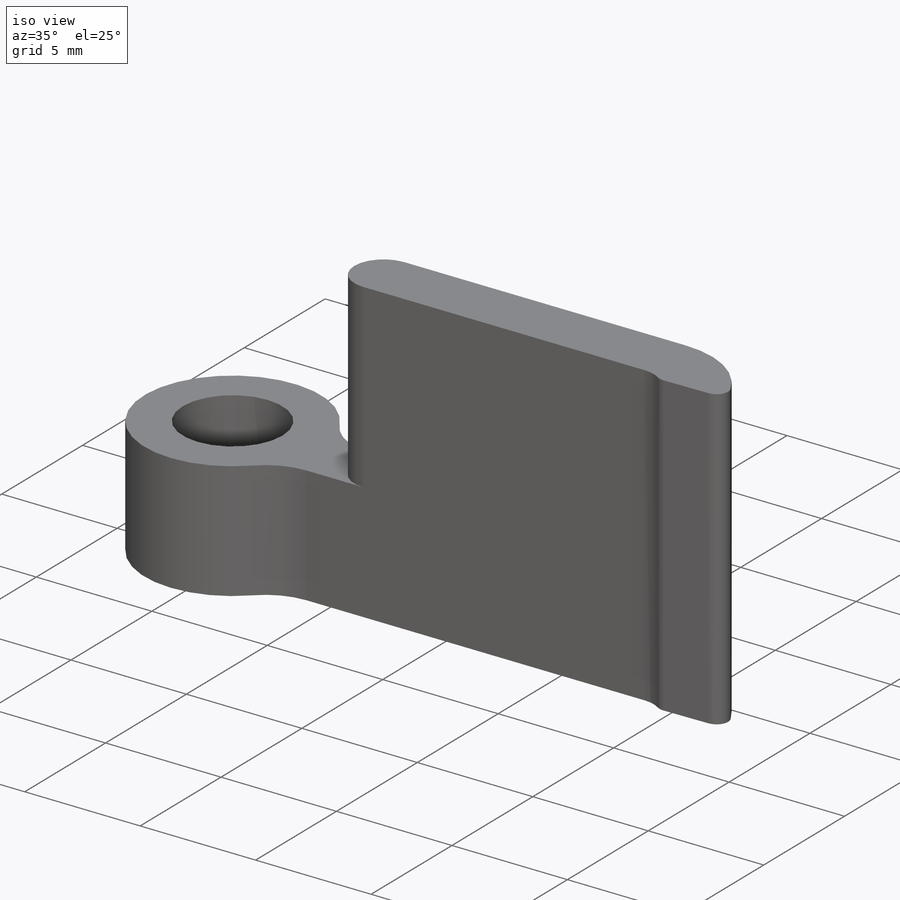
[diagram: iso view]
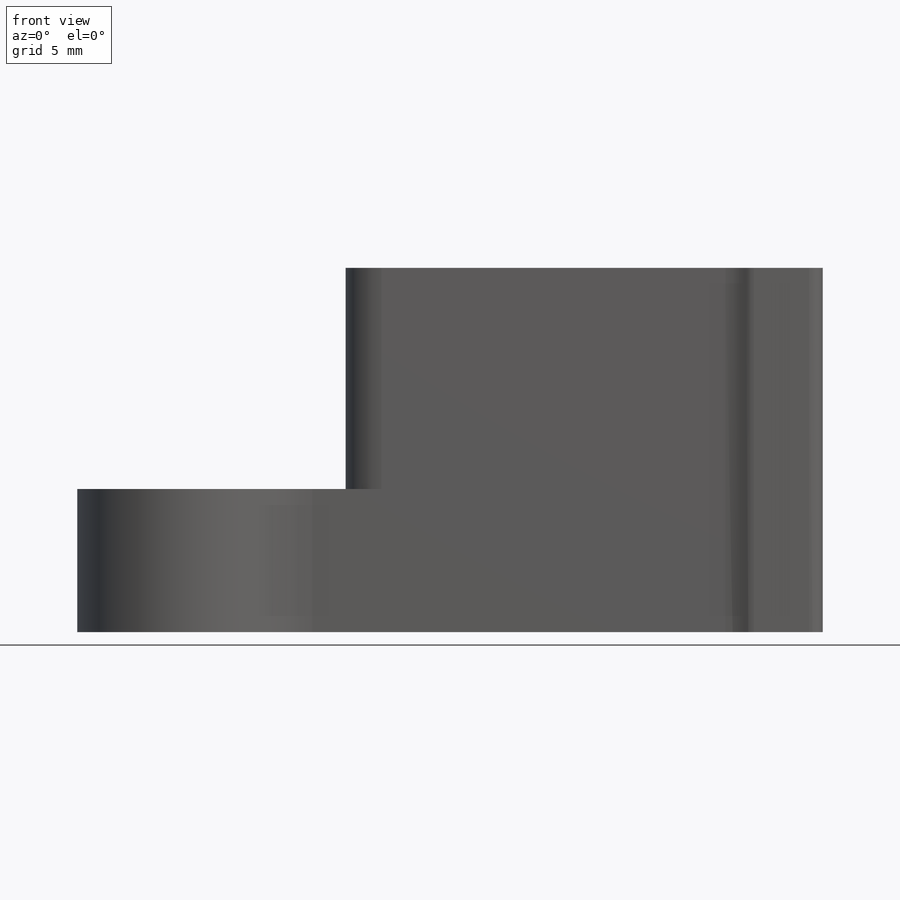
[diagram: front view]
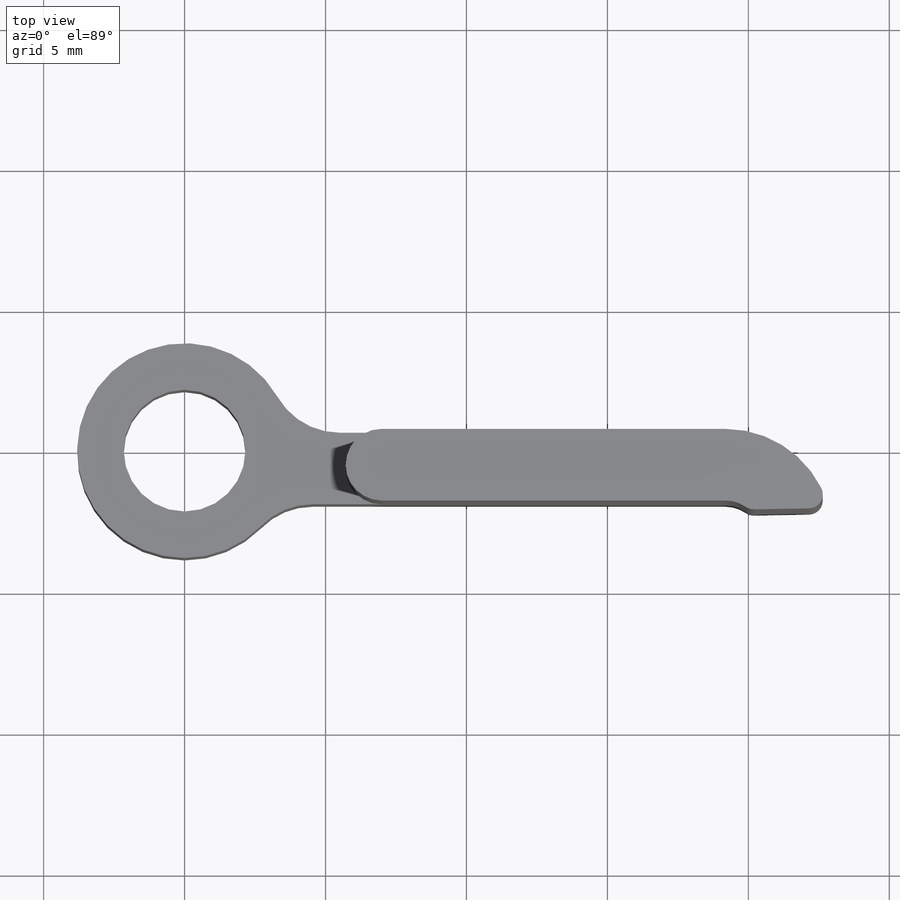
[diagram: top view]
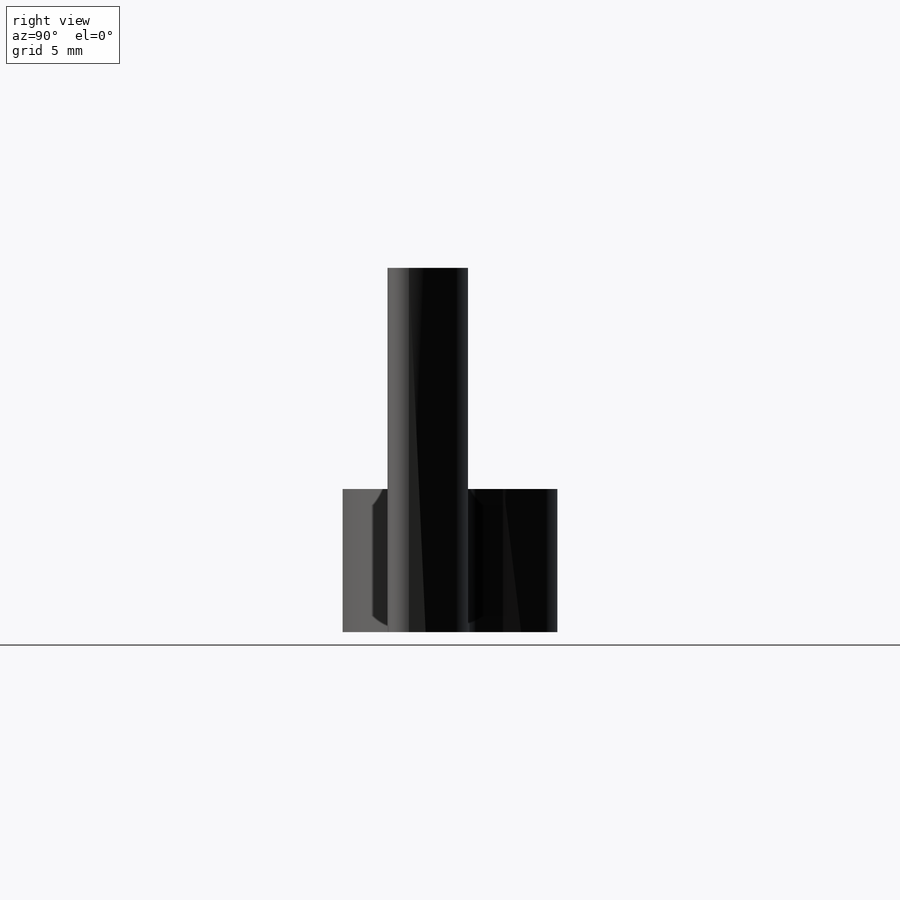
[diagram: right view]
SOLIDWORKS PART (.sldprt)
format: sldprt  version: not decoded by parser v0  size: 235,008 bytes
history: native  units: mm
features: sketch x6, cut_extrude x5, fillet x3, material x1, extrude x1 (+11 scaffold rows collapsed)
feature tree (27):
  scaffold x11  (default folders/planes/origin — collapsed)
  material  "Material <not specified>"
  sketch  "Sketch1"  dims[c1.D1=~18.141928mm c1.D2=1.27mm c1.D4=3.81mm c1.D6=4.318mm c1.D7=2.54mm c1.D9=2.54mm c2.D1=2.54mm c2.D3=2.54mm c2.D5=22.75mm c3.D1=0.3175mm c3.D8=~12.718296mm c4.D8=1.0deg c4.D5=22.86mm c4.D9=3.0mm c4.D10=0.635mm]
  extrude  "Boss-Extrude1"  Depth=20.63mm
  sketch  "Sketch3"  dims[c1.D1=~27.383873mm c1.D2=~20.837088mm c2.D1=5.715mm]
  cut_extrude  "Cut-Extrude2"  Depth=11.6938mm
  fillet  "Fillet2"  Radius=0.635mm
  fillet  "Fillet3"  Radius=0.5mm
  sketch  "Sketch5"  dims[D1=~22.800708mm D2=~41.751996mm]
  cut_extrude  "Cut-Extrude3"  Depth=6.35mm
  sketch  "Sketch6"  dims[c1.D1=~10.108443mm c1.D2=~25.932969mm c2.D1=1.0mm c2.D2=3.5814mm]
  cut_extrude  "Cut-Extrude4"  [1 undecoded]
  sketch  "Sketch7"  dims[D1=~14.450036mm D2=~22.049257mm]
  cut_extrude  "Cut-Extrude5"  Depth=1.27mm
  sketch  "Sketch8"  dims[D1=~31.46616mm D2=~47.336927mm]
  cut_extrude  "Cut-Extrude6"  Depth=1.27mm
  fillet  "Fillet4"  Radius=1.27mm
decode coverage: 14 of 15 modeling features carry decoded parameters
note: ~ marks probable driven/reference dimensions
note: 1 parameter value undecoded
note: suppression state not decoded; provenance and decode notes live in map.json
